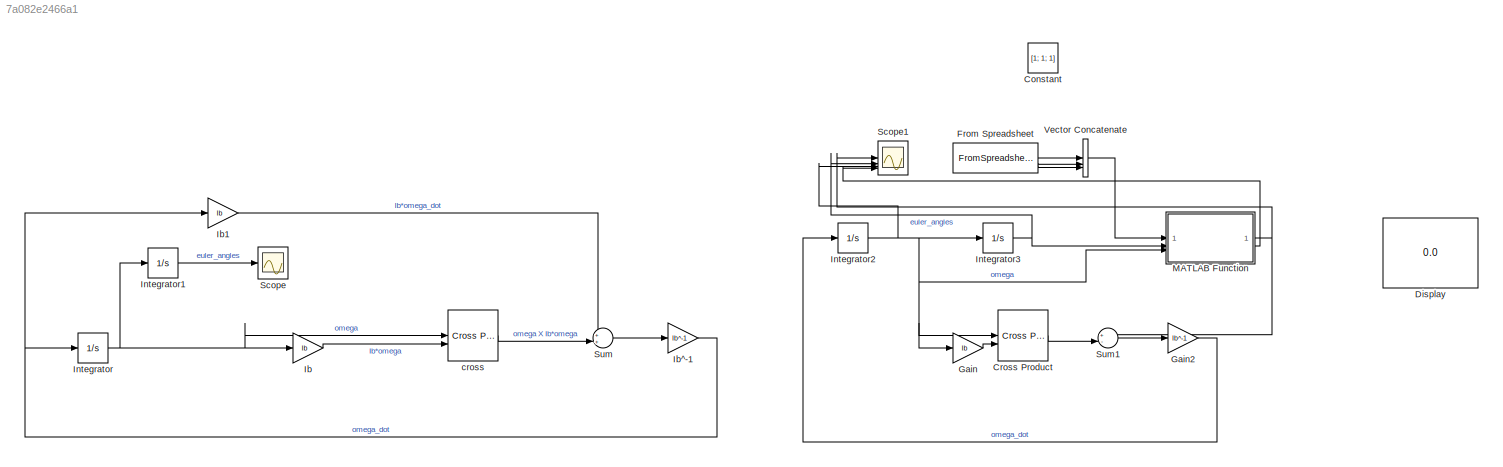
MODEL slx_7a082e2466a1
KIND model
CONFIG AbsTol = auto
CONFIG EnableMultiTasking = off
CONFIG FixedStep = auto
CONFIG MaxStep = auto
CONFIG MinStep = auto
CONFIG RelTol = 1e-3
CONFIG SampleTimeConstraint = Unconstrained
CONFIG SolverName = VariableStepAuto
CONFIG StartTime = 0.0
CONFIG StopTime = 17000
BLOCK [Constant] Constant
  Value = [1; 1; 1]
BLOCK [Reference] Cross Product  REF=matrix_library/Cross Product
  LibrarySourceBlock = simulink/Matrix\nOperations/Cross Product
  SourceBlock = matrix_library/Cross Product
  SourceType = CrossProduct
BLOCK [Display] Display
  Decimation = 1
BLOCK [FromSpreadsheet] From Spreadsheet
  FileName = magdata.xlsx
BLOCK [Gain] Gain
  Gain = Ib
  Multiplication = Matrix(K*u)
BLOCK [Gain] Gain2
  Gain = Ib^-1
  Multiplication = Matrix(K*u)
BLOCK [Gain] Ib
  Commented = on
  Gain = Ib
  Multiplication = Matrix(K*u)
BLOCK [Gain] Ib1
  Commented = on
  Gain = Ib
  Multiplication = Matrix(K*u)
BLOCK [Gain] Ib^-1
  Commented = on
  Gain = Ib^-1
  Multiplication = Matrix(K*u)
BLOCK [Integrator] Integrator
  Commented = on
  InitialCondition = dx0
BLOCK [Integrator] Integrator1
  Commented = on
  InitialCondition = x0
BLOCK [Integrator] Integrator2
  InitialCondition = dx0
BLOCK [Integrator] Integrator3
  InitialCondition = x0
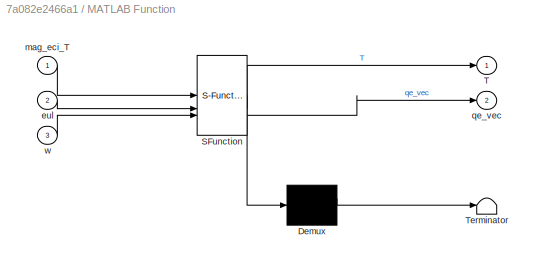
BLOCK [SubSystem] MATLAB Function
  ErrorFcn = Stateflow.Translate.translate
  PermitHierarchicalResolution = ExplicitOnly
  SFBlockType = MATLAB Function
  TreatAsAtomicUnit = on
BLOCK [Demux] MATLAB Function/ Demux 
  Outputs = 1
BLOCK [S-Function] MATLAB Function/ SFunction 
  EnableBusSupport = on
  FunctionName = sf_sfun
  PortCounts = [3 3]
  SFcnIsStateOwnerBlock = off
  SFunctionDeploymentMode = off
  Tag = Stateflow S-Function 2
BLOCK [Terminator] MATLAB Function/ Terminator 
BLOCK [Outport] MATLAB Function/T
BLOCK [Inport] MATLAB Function/eul
  Port = 2
BLOCK [Inport] MATLAB Function/mag_eci_T
BLOCK [Outport] MATLAB Function/qe_vec
  Port = 2
BLOCK [Inport] MATLAB Function/w
  Port = 3
BLOCK [Scope] Scope
  Commented = on
  Floating = off
  NumInputPorts = 1
  ScopeSpecificationString = Simulink.scopes.TimeScopeBlockCfg('CurrentConfiguration', extmgr.ConfigurationSet(extmgr.Configuration('Core','General UI',true),extmgr.Configuration('Core','Source UI',true),extmgr.Configuration('Sources','WiredSimulink',true),extmgr.Configuration('Visuals','Time Domain',true,'SerializedDisplays',{struct('MinYLimReal','-1.00000','MaxYLimReal','1.00000','YLabelReal','','MinYLimMag','0.00000','MaxY...<+1457ch>
BLOCK [Scope] Scope1
  Floating = off
  NumInputPorts = 4
  ScopeSpecificationString = Simulink.scopes.TimeScopeBlockCfg('CurrentConfiguration', extmgr.ConfigurationSet(extmgr.Configuration('Core','General UI',true),extmgr.Configuration('Core','Source UI',true),extmgr.Configuration('Sources','WiredSimulink',true,'DataLoggingVariableName','ScopeData1'),extmgr.Configuration('Visuals','Time Domain',true,'SerializedDisplays',{struct('MinYLimReal','-10.36811','MaxYLimReal','8.06252','YLa...<+2031ch>
BLOCK [Sum] Sum
  Commented = on
  Inputs = ++|
BLOCK [Sum] Sum1
  Inputs = +-|
BLOCK [Concatenate] Vector Concatenate
  NumInputs = 3
BLOCK [Reference] cross  REF=matrix_library/Cross Product
  Commented = on
  LibrarySourceBlock = simulink/Matrix\nOperations/Cross Product
  SourceBlock = matrix_library/Cross Product
  SourceType = CrossProduct
LINE Cross Product:1 -> Sum1:2
LINE From Spreadsheet:1 -> Vector Concatenate:1
LINE From Spreadsheet:2 -> Vector Concatenate:2
LINE From Spreadsheet:3 -> Vector Concatenate:3
LINE Gain2:1 -> Integrator2:1
LINE Gain:1 -> Cross Product:2
LINE Ib1:1 -> Sum:1
LINE Ib:1 -> cross:2
NET Ib^-1:1 -> Ib1:1, Integrator:1
LINE Integrator1:1 -> Scope:1
NET Integrator2:1 -> Cross Product:1, Gain:1, Integrator3:1, MATLAB Function:3, Scope1:3
NET Integrator3:1 -> MATLAB Function:2, Scope1:2
NET Integrator:1 -> Ib:1, Integrator1:1, cross:1
NET MATLAB Function:1 -> Scope1:1, Sum1:1
LINE MATLAB Function:2 -> Scope1:4
LINE Sum1:1 -> Gain2:1
LINE Sum:1 -> Ib^-1:1
LINE Vector Concatenate:1 -> MATLAB Function:1
LINE cross:1 -> Sum:2
note: NET lines group one-source signal fan-out (src -> all destinations, sorted); 1:1 wires keep LINE
CHART MATLAB Function states=1 transitions=1
  STATE_LABEL 'eML_blk_kernel()'
  STATE_LABEL 'SCRIPT:\nfunction [T, qe_vec]= controller(mag_eci_T, eul, w)\n% Define gains Kp and Kd\nKp = 300;\nKd = 500;\n\n% Attitude Quat (orientation of body wrt ECI)\n% As far as I understand, using the MATLAB functions as the following means\n% that our attitude given by eul(1), eul(2), eul(3) is understood as a yaw\n% of eul(3), then a pitch of eul(2), then a roll of eul(1).\n\nq = eul2quat([eul(3) eul(2) eul(1)])...<+945ch>'
CHART  states=0 transitions=0
